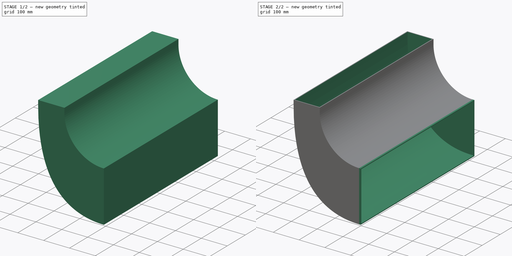
[diagram: build sequence overview — one tinted view per stage of 2, left to right]
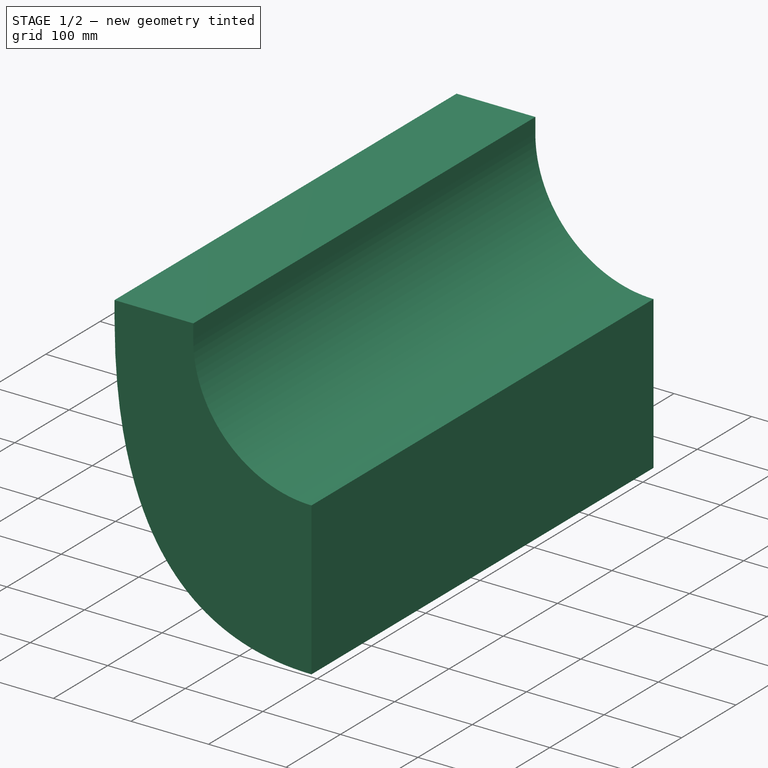
[diagram: stage 1 of 2 — iso view after this stage's code; geometry added in this stage tinted green]
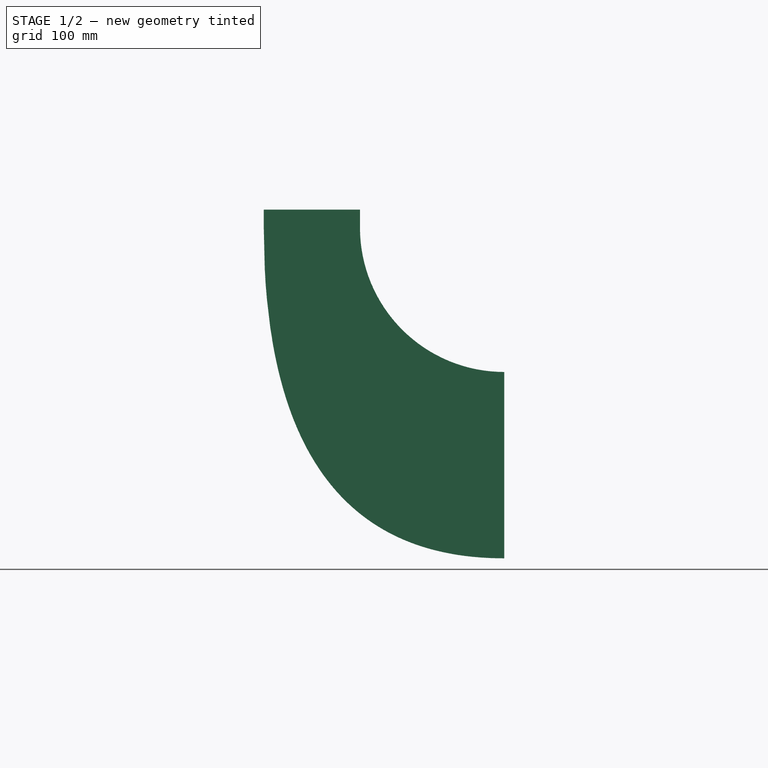
[diagram: stage 1 of 2 — front view after this stage's code; geometry added in this stage tinted green]
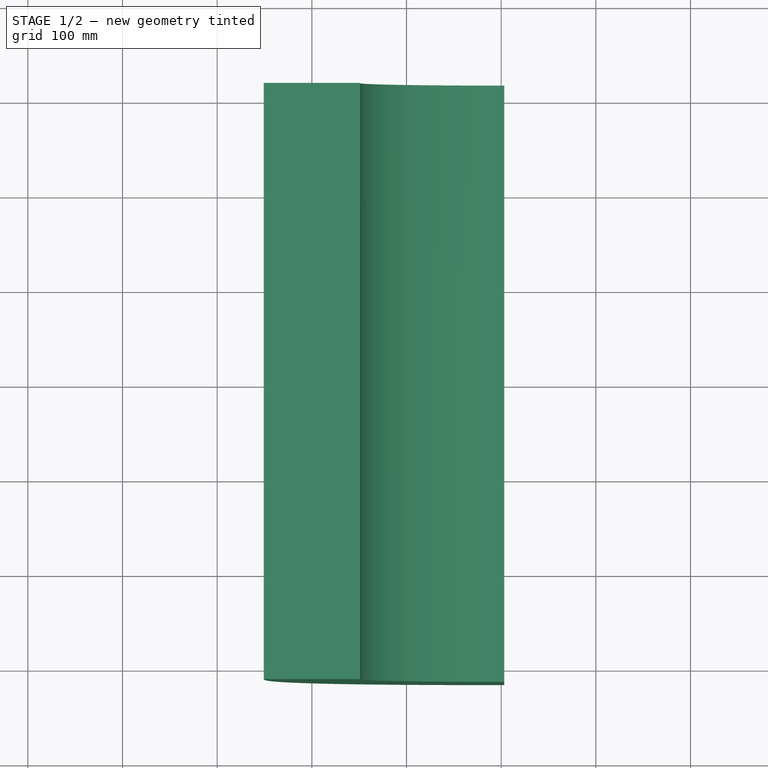
[diagram: stage 1 of 2 — top view after this stage's code; geometry added in this stage tinted green]
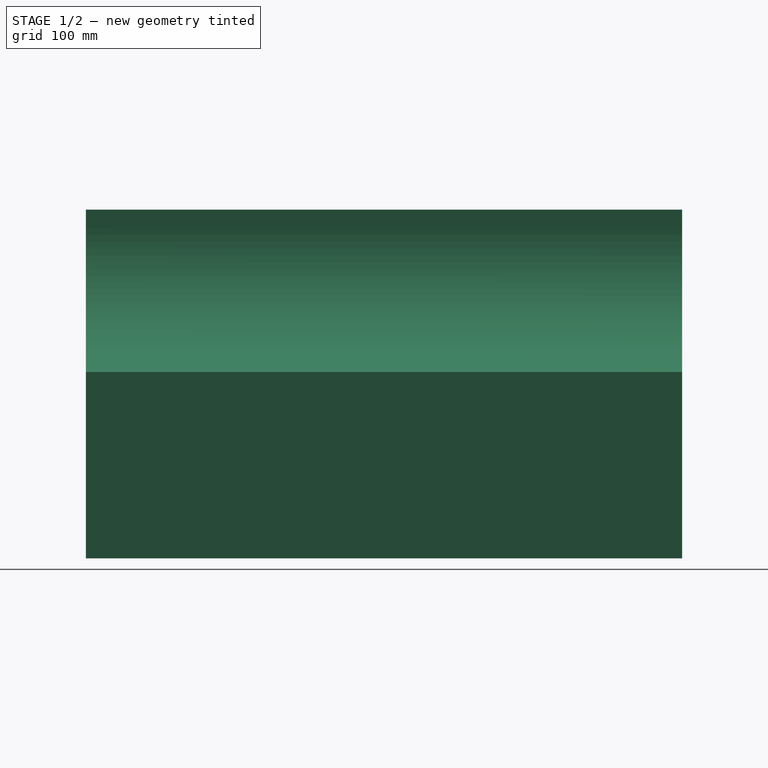
[diagram: stage 1 of 2 — right view after this stage's code; geometry added in this stage tinted green]
FCSTD DOCUMENT  (FreeCAD 1.0R39109 (Git))
Label: transition
License: All rights reserved
LicenseURL: http://en.wikipedia.org/wiki/All_rights_reserved
objects: PartDesign::Pad×3, Sketcher::SketchObject×2, PartDesign::Body×2, PartDesign::Thickness×1
note: 18 computed .brp shape members not serialized (recipe doc carries the construction recipe); baked Part::Feature solids carry a one-line shape summary decoded from their .brp

FEATURE [Sketcher::SketchObject] Sketch001
  ArcFitTolerance = 1e-06
  AttachmentSupport = -> [XZ_Plane]
  FullyConstrained = true
  MakeInternals = false
  MapMode = 5
  Placement = pos=(0,0,0) rot=(1,0,0;1.5708rad)
  sketch-geometry (9):
    g0: ArcOfCircle CenterX=203.2 CenterY=0 CenterZ=0 NormalX=0 NormalY=0 NormalZ=1 AngleXU=0 Radius=152.4 StartAngle=3.14159 EndAngle=4.71239
    g1: LineSegment StartX=50.8 StartY=1.87e-14 StartZ=0 EndX=-50.8 EndY=0 EndZ=0
    g2: LineSegment StartX=203.2 StartY=-152.4 StartZ=0 EndX=203.2 EndY=-349.25 EndZ=0
    g3: Circle [constr] CenterX=-50.8 CenterY=0 CenterZ=0 NormalX=0 NormalY=0 NormalZ=1 AngleXU=0 Radius=1
    g4: Circle [constr] CenterX=-50.8 CenterY=-349.25 CenterZ=0 NormalX=0 NormalY=0 NormalZ=1 AngleXU=0 Radius=1
    g5: Circle [constr] CenterX=203.2 CenterY=-349.25 CenterZ=0 NormalX=0 NormalY=0 NormalZ=1 AngleXU=0 Radius=1
    g6: BSplineCurve PolesCount=3 KnotsCount=2 Degree=2 IsPeriodic=0
    g7: GeomPoint [constr] X=-50.8 Y=0 Z=0
    g8: GeomPoint [constr] X=203.2 Y=-349.25 Z=0
  constraints (23):
    c: PointOnObject(g0,g-1)
    c: PointOnObject(g0,g-1)
    c: Vertical(g0,g0)
    c: Radius(g0) = 152.4
    c: DistanceX(g-1,g0) = 50.8
    c: Coincident(g1,g0)
    c: Coincident(g2,g0)
    c: Vertical(g2)
    c: DistanceY(g2,g2) = 196.85
    c: DistanceX(g1,g0) = 101.6
    c: PointOnObject(g1,g-1)
    c: Weight(g3) = 1
    c: Equal(g3,g4)
    c: Equal(g3,g5)
    c: InternalAlignment(g3,g6)
    c: InternalAlignment(g4,g6)
    c: InternalAlignment(g5,g6)
    c: InternalAlignment(g7,g6)
    c: InternalAlignment(g8,g6)
    c: Coincident(g3,g1)
    c: Coincident(g5,g2)
    c: Vertical(g4,g6)
    c: Horizontal(g4,g6)
FEATURE [PartDesign::Pad] Pad
  Direction = (0,-1,2e-16)
  Length = 629.92
  Length2 = 10
  Midplane = true
  Placement = pos=(0,0,0) rot=(1,0,0;1.5708rad)
  Profile = -> Sketch001
  ReferenceAxis = -> Sketch001 [N_Axis]
  Suppressed = false
  Type = 0
FEATURE [PartDesign::Pad] Pad001
  BaseFeature = -> Pad
  Direction = (-2e-16,2e-16,1)
  Length = 19.05
  Length2 = 10
  Placement = pos=(0,0,0) rot=(1,0,0;1.5708rad)
  Profile = -> Pad [Face4]
  Suppressed = false
  Type = 0
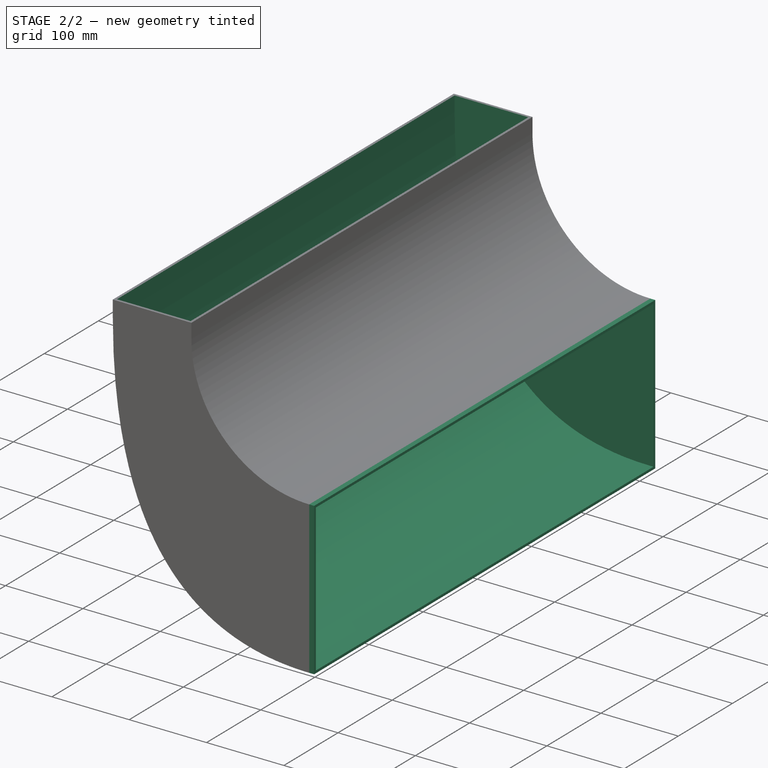
[diagram: stage 2 of 2 — iso view after this stage's code; geometry added in this stage tinted green]
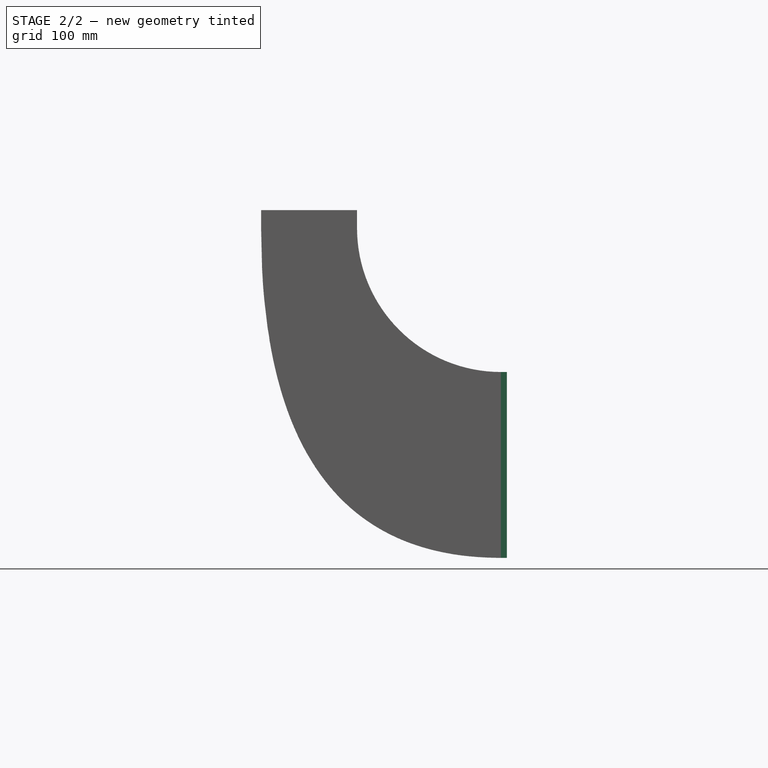
[diagram: stage 2 of 2 — front view after this stage's code; geometry added in this stage tinted green]
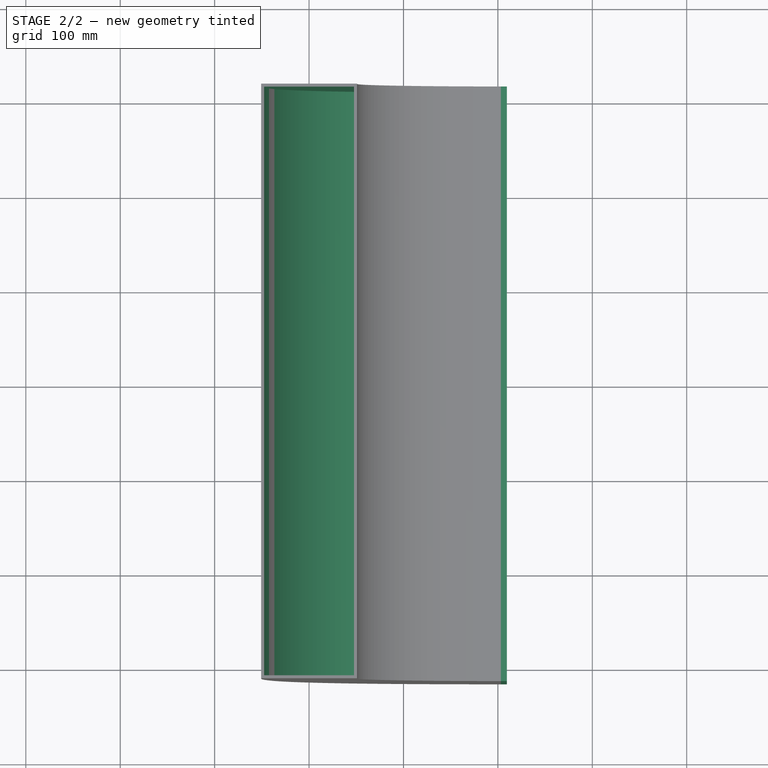
[diagram: stage 2 of 2 — top view after this stage's code; geometry added in this stage tinted green]
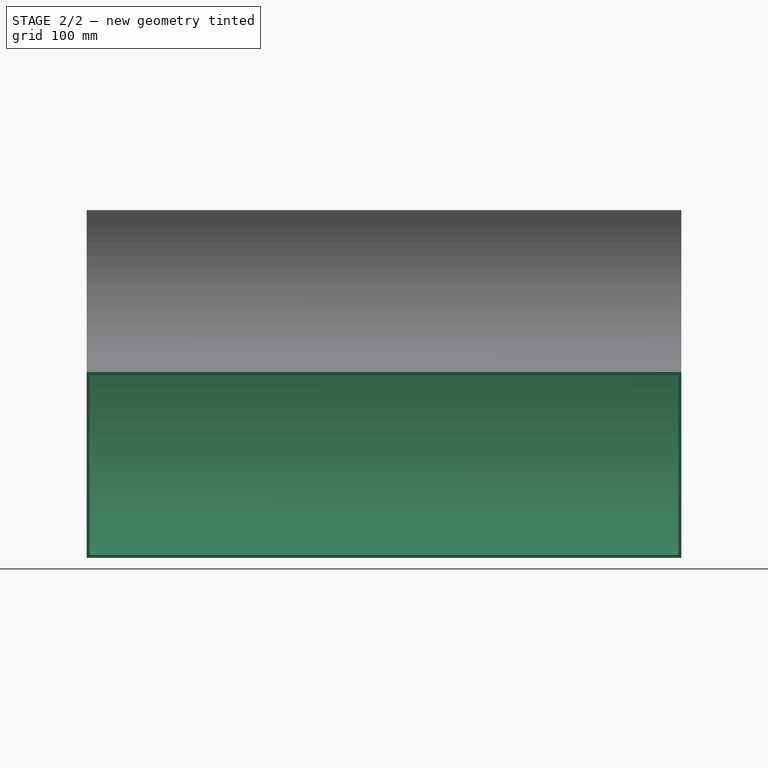
[diagram: stage 2 of 2 — right view after this stage's code; geometry added in this stage tinted green]
FEATURE [PartDesign::Pad] Pad002
  BaseFeature = -> Pad001
  Direction = (1,0,0)
  Length = 6.35
  Length2 = 10
  Placement = pos=(0,0,0) rot=(1,0,0;1.5708rad)
  Profile = -> Pad001 [Face3]
  Suppressed = false
  Type = 0
FEATURE [PartDesign::Thickness] Thickness
  Base = -> Pad002 [Face8,Face11]
  BaseFeature = -> Pad002
  Intersection = false
  Join = 0
  Mode = 0
  Reversed = true
  SupportTransform = false
  Suppressed = false
  Value = 3.175
FEATURE [PartDesign::Body] Body  label="elbow"
  AllowCompound = false
  Group = -> [Sketch001,Pad,Pad001,Pad002,Thickness]
  Origin = -> Origin
  Tip = -> Thickness
FEATURE [Sketcher::SketchObject] Sketch
  ArcFitTolerance = 1e-06
  AttachmentSupport = -> [XY_Plane001]
  FullyConstrained = true
  MakeInternals = false
  MapMode = 5
FEATURE [PartDesign::Body] Body001  label="reducer"
  AllowCompound = false
  Group = -> [Sketch]
  Origin = -> Origin001
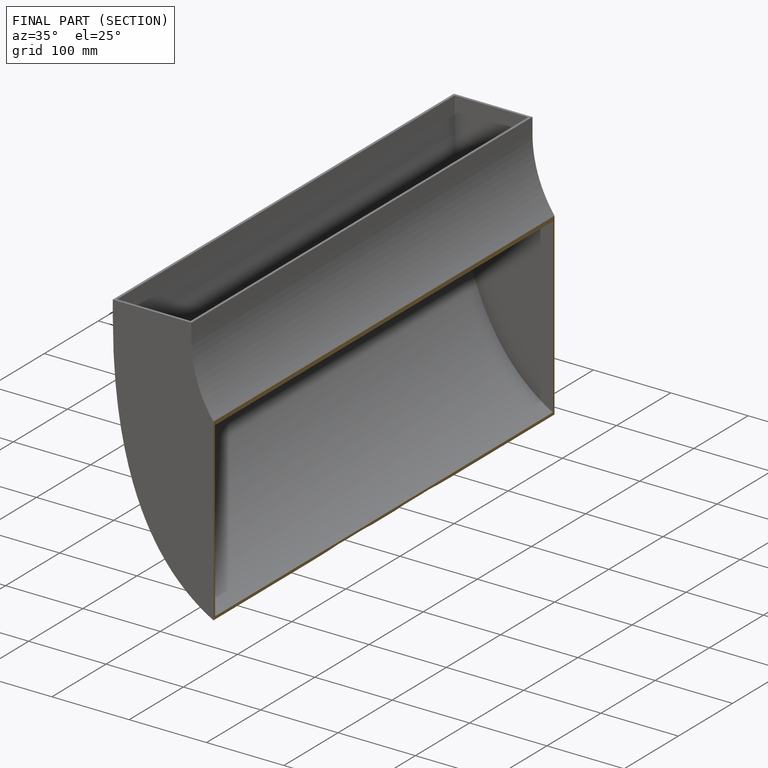
[diagram: finished part — half-section view (interior)]
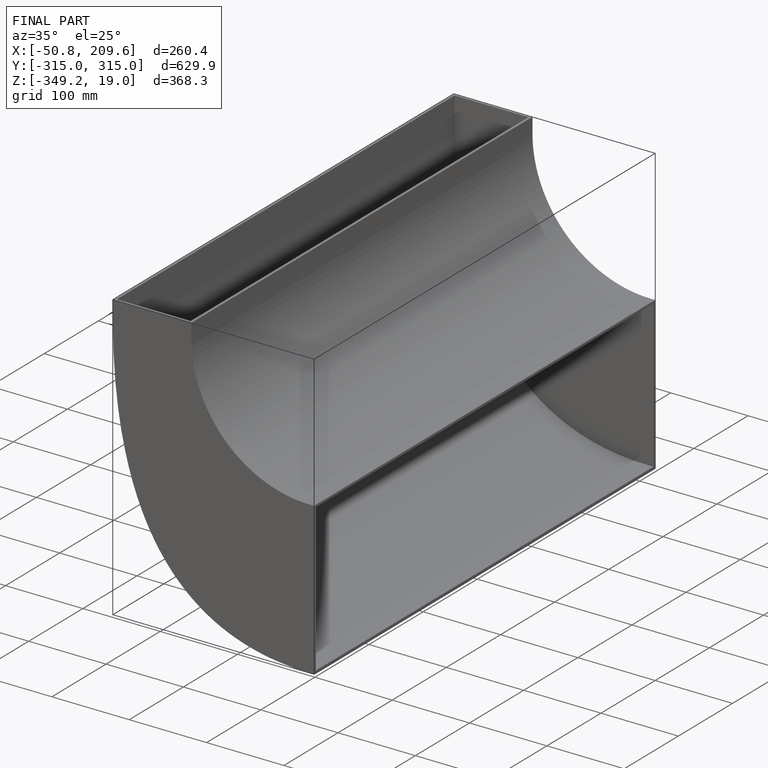
[diagram: finished part — iso view with bounding-box wireframe]
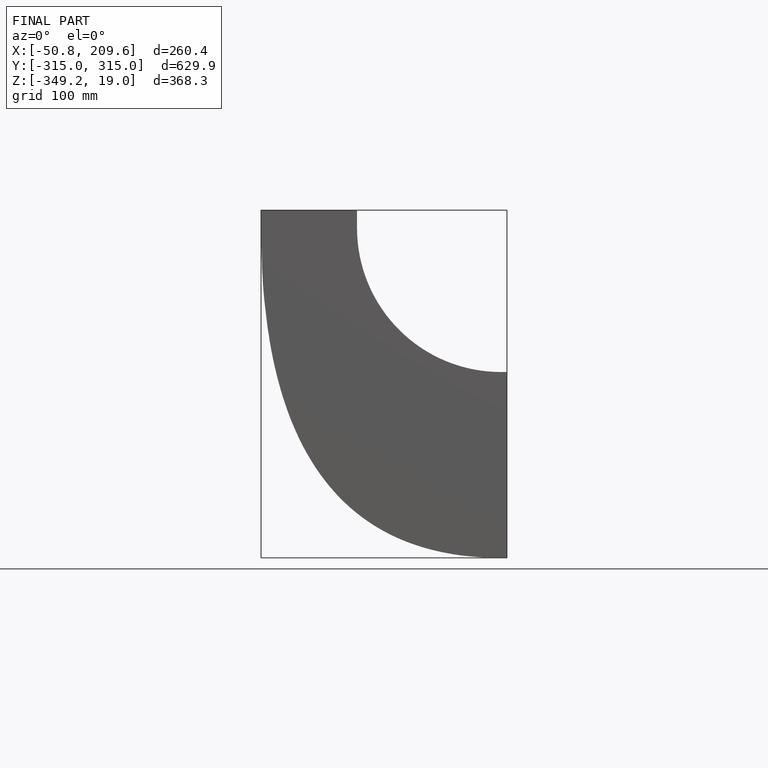
[diagram: finished part — front view with bounding-box wireframe]
